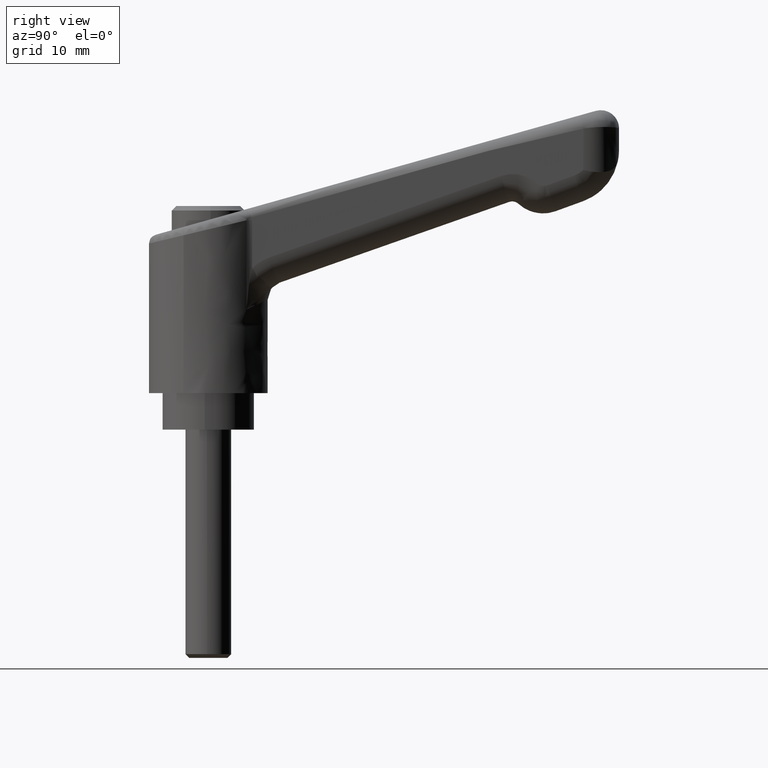
[diagram: clean part render]
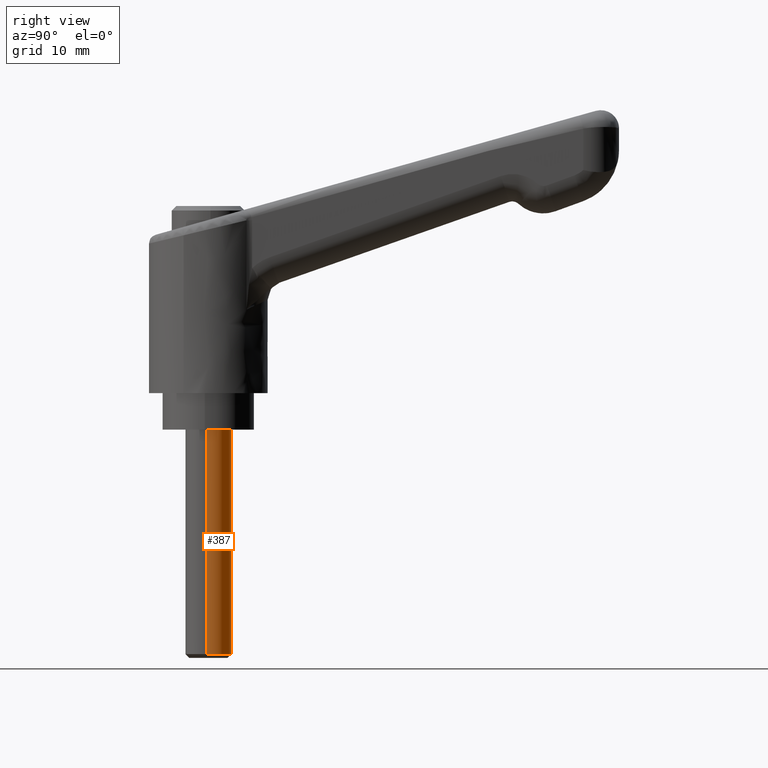
[diagram: same view with one face highlighted and labeled with its STEP entity id]
A machine part, right view. The second image highlights one B-rep face of the part: STEP entity #387.
In plain terms, the highlighted face is a freeform B-spline surface patch.
Its self-contained STEP definition (entity closure, byte-faithful):
#118=CARTESIAN_POINT('',(0.021816339586011,-2.499904807767249,-24.599999999885849));
#119=VERTEX_POINT('',#118);
#125=CARTESIAN_POINT('',(-0.152621348980190,-2.495336996045918,-24.600000000000001));
#126=VERTEX_POINT('',#125);
#127=CARTESIAN_POINT('',(-0.152621348980190,-2.495336996045918,-24.599999999999998));
#128=CARTESIAN_POINT('',(-0.076381908389921,-2.500000000000000,-24.600000000000001));
#129=CARTESIAN_POINT('',(0.0,-2.500000000000000,-24.600000000000001));
#130=CARTESIAN_POINT('',(0.010908377890884,-2.500000000000000,-24.600000000000005));
#131=CARTESIAN_POINT('',(0.021816339586011,-2.499904807767250,-24.599999999885849));
#139=(BOUNDED_CURVE()B_SPLINE_CURVE(2,(#127,#128,#129,#130,#131),.UNSPECIFIED.,.F.,.U.)B_SPLINE_CURVE_WITH_KNOTS((3,2,3),(0.739332962222185,0.750000000000000,0.751539894453230),.UNSPECIFIED.)CURVE()GEOMETRIC_REPRESENTATION_ITEM()RATIONAL_B_SPLINE_CURVE((0.976072041630803,0.987502787880205,1.0,0.998195901427842,0.996414027826758))REPRESENTATION_ITEM(''));
#140=EDGE_CURVE('',#126,#119,#139,.T.);
#180=CARTESIAN_POINT('',(0.295085586690003,2.482523815903448,-24.600000000000001));
#181=VERTEX_POINT('',#180);
#197=CARTESIAN_POINT('',(2.500000000000000,0.0,-24.600000000000001));
#198=VERTEX_POINT('',#197);
#199=CARTESIAN_POINT('',(2.500000000000000,0.0,-24.600000000000001));
#200=CARTESIAN_POINT('',(2.500000000000000,2.220436314791758,-24.600000000000009));
#201=CARTESIAN_POINT('',(0.295085586690003,2.482523815903447,-24.600000000000001));
#209=(BOUNDED_CURVE()B_SPLINE_CURVE(2,(#199,#200,#201),.UNSPECIFIED.,.F.,.U.)B_SPLINE_CURVE_WITH_KNOTS((3,3),(0.0,0.229562473509094),.UNSPECIFIED.)CURVE()GEOMETRIC_REPRESENTATION_ITEM()RATIONAL_B_SPLINE_CURVE((1.0,0.731050832860574,0.956026754175048))REPRESENTATION_ITEM(''));
#210=EDGE_CURVE('',#198,#181,#209,.T.);
#212=CARTESIAN_POINT('',(0.021816339586011,-2.499904807767250,-24.599999999885853));
#213=CARTESIAN_POINT('',(2.500000000000000,-2.478278024823741,-24.600000000000009));
#214=CARTESIAN_POINT('',(2.500000000000000,0.0,-24.600000000000001));
#222=(BOUNDED_CURVE()B_SPLINE_CURVE(2,(#212,#213,#214),.UNSPECIFIED.,.F.,.U.)B_SPLINE_CURVE_WITH_KNOTS((3,3),(0.751539894453230,1.0),.UNSPECIFIED.)CURVE()GEOMETRIC_REPRESENTATION_ITEM()RATIONAL_B_SPLINE_CURVE((0.996414027826759,0.708910879758705,1.0))REPRESENTATION_ITEM(''));
#223=EDGE_CURVE('',#119,#198,#222,.T.);
#285=CARTESIAN_POINT('',(-0.152621348980190,-2.495336996045918,0.0));
#286=VERTEX_POINT('',#285);
#287=CARTESIAN_POINT('',(-0.152621348980190,-2.495336996045918,-24.600000000000001));
#288=CARTESIAN_POINT('',(-0.152621348980190,-2.495336996045918,0.0));
#289=QUASI_UNIFORM_CURVE('',1,(#287,#288),.UNSPECIFIED.,.F.,.U.);
#290=EDGE_CURVE('',#126,#286,#289,.T.);
#307=CARTESIAN_POINT('',(0.295085586690003,2.482523815903448,0.0));
#308=VERTEX_POINT('',#307);
#324=CARTESIAN_POINT('',(0.295085586690003,2.482523815903448,-24.600000000000001));
#325=CARTESIAN_POINT('',(0.295085586690003,2.482523815903448,0.0));
#326=QUASI_UNIFORM_CURVE('',1,(#324,#325),.UNSPECIFIED.,.F.,.U.);
#327=EDGE_CURVE('',#181,#308,#326,.T.);
#332=CARTESIAN_POINT('',(-0.152621348837143,-2.495336996054667,-25.215000000000011));
#333=CARTESIAN_POINT('',(2.342715647217524,-2.647958344891809,-25.215000000000007));
#334=CARTESIAN_POINT('',(2.495336996054667,-0.152621348837143,-25.215000000000011));
#335=CARTESIAN_POINT('',(2.639465491831319,2.203858727098751,-25.215000000000007));
#336=CARTESIAN_POINT('',(0.295085586641896,2.482523815909166,-25.215000000000011));
#337=CARTESIAN_POINT('',(-0.152621348837143,-2.495336996054667,0.630375000000001));
#338=CARTESIAN_POINT('',(2.342715647217524,-2.647958344891809,0.630375000000001));
#339=CARTESIAN_POINT('',(2.495336996054667,-0.152621348837143,0.630375000000001));
#340=CARTESIAN_POINT('',(2.639465491831319,2.203858727098751,0.630375000000001));
#341=CARTESIAN_POINT('',(0.295085586641896,2.482523815909166,0.630375000000001));
#349=(BOUNDED_SURFACE()B_SPLINE_SURFACE(2,1,((#332,#337),(#333,#338),(#334,#339),(#335,#340),(#336,#341)),.UNSPECIFIED.,.F.,.F.,.U.)B_SPLINE_SURFACE_WITH_KNOTS((3,2,3),(2,2),(0.0,4.142135623730949,8.118585822512660),(0.0,25.845375000000018),.UNSPECIFIED.)GEOMETRIC_REPRESENTATION_ITEM()RATIONAL_B_SPLINE_SURFACE(((1.0,1.0),(0.707106781186548,0.707106781186548),(1.0,1.0),(0.718822509939086,0.718822509939086),(0.977505800795127,0.977505800795127)))REPRESENTATION_ITEM('')SURFACE());
#350=ORIENTED_EDGE('',*,*,#210,.T.);
#351=ORIENTED_EDGE('',*,*,#327,.T.);
#352=CARTESIAN_POINT('',(2.500000000000000,0.0,0.0));
#353=VERTEX_POINT('',#352);
#354=CARTESIAN_POINT('',(2.500000000000000,0.0,0.0));
#355=CARTESIAN_POINT('',(2.500000000000000,2.220436314791758,0.0));
#356=CARTESIAN_POINT('',(0.295085586690003,2.482523815903447,0.0));
#364=(BOUNDED_CURVE()B_SPLINE_CURVE(2,(#354,#355,#356),.UNSPECIFIED.,.F.,.U.)B_SPLINE_CURVE_WITH_KNOTS((3,3),(0.0,0.229562473509094),.UNSPECIFIED.)CURVE()GEOMETRIC_REPRESENTATION_ITEM()RATIONAL_B_SPLINE_CURVE((1.0,0.731050832860574,0.956026754175048))REPRESENTATION_ITEM(''));
#365=EDGE_CURVE('',#353,#308,#364,.T.);
#366=ORIENTED_EDGE('',*,*,#365,.F.);
#367=CARTESIAN_POINT('',(-0.152621348980190,-2.495336996045918,0.0));
#368=CARTESIAN_POINT('',(-0.076381908389921,-2.500000000000000,0.0));
#369=CARTESIAN_POINT('',(0.0,-2.500000000000000,0.0));
#370=CARTESIAN_POINT('',(2.500000000000000,-2.500000000000000,0.0));
#371=CARTESIAN_POINT('',(2.500000000000000,0.0,0.0));
#379=(BOUNDED_CURVE()B_SPLINE_CURVE(2,(#367,#368,#369,#370,#371),.UNSPECIFIED.,.F.,.U.)B_SPLINE_CURVE_WITH_KNOTS((3,2,3),(0.739332962222185,0.750000000000000,1.0),.UNSPECIFIED.)CURVE()GEOMETRIC_REPRESENTATION_ITEM()RATIONAL_B_SPLINE_CURVE((0.976072041630803,0.987502787880205,1.0,0.707106781186548,1.0))REPRESENTATION_ITEM(''));
#380=EDGE_CURVE('',#286,#353,#379,.T.);
#381=ORIENTED_EDGE('',*,*,#380,.F.);
#382=ORIENTED_EDGE('',*,*,#290,.F.);
#383=ORIENTED_EDGE('',*,*,#140,.T.);
#384=ORIENTED_EDGE('',*,*,#223,.T.);
#385=EDGE_LOOP('',(#350,#351,#366,#381,#382,#383,#384));
#386=FACE_OUTER_BOUND('',#385,.T.);
#387=ADVANCED_FACE('',(#386),#349,.T.);